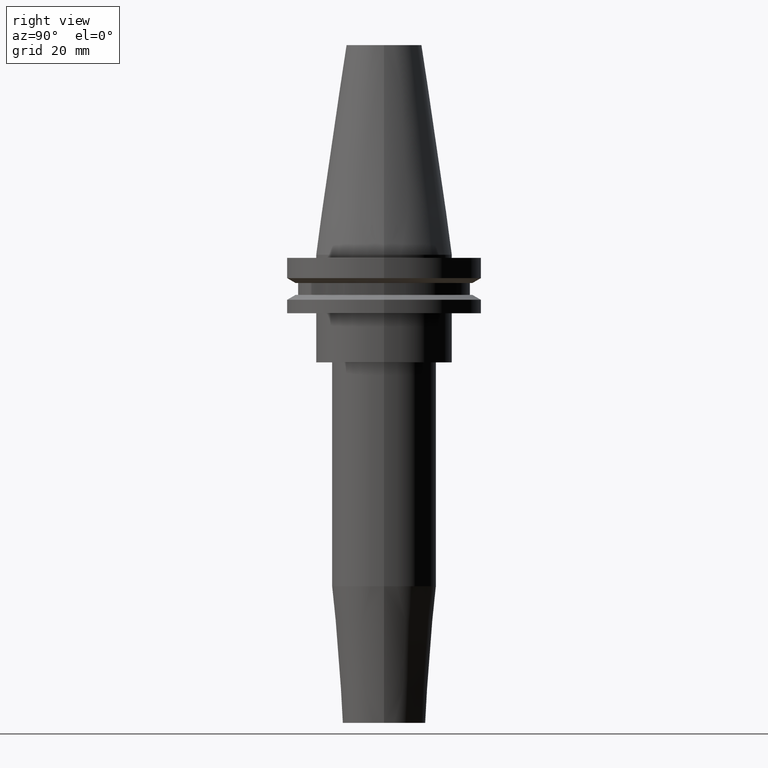
[diagram: clean part render]
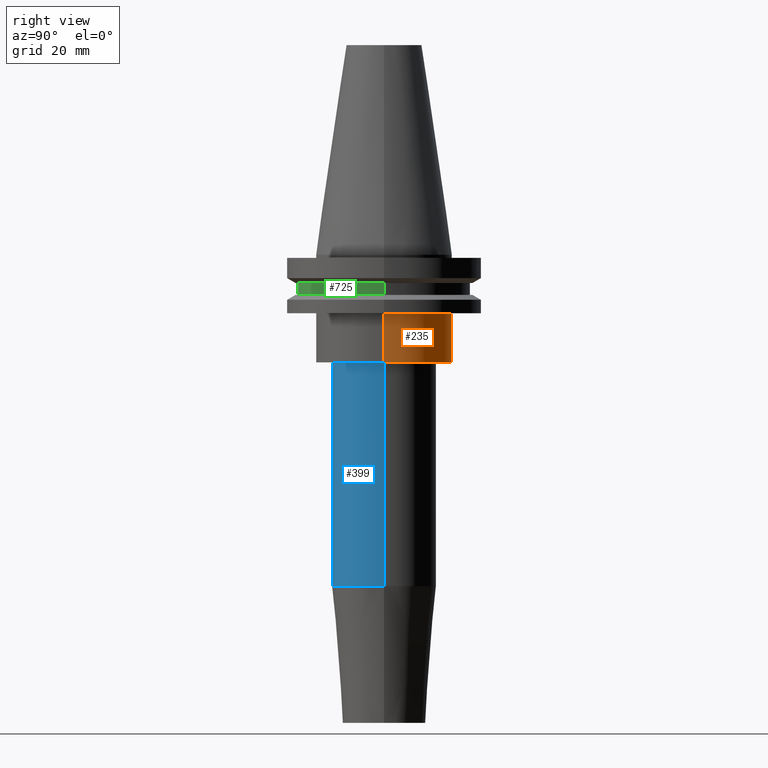
[diagram: same view with three faces highlighted in distinct colors, each labeled with its STEP entity id]
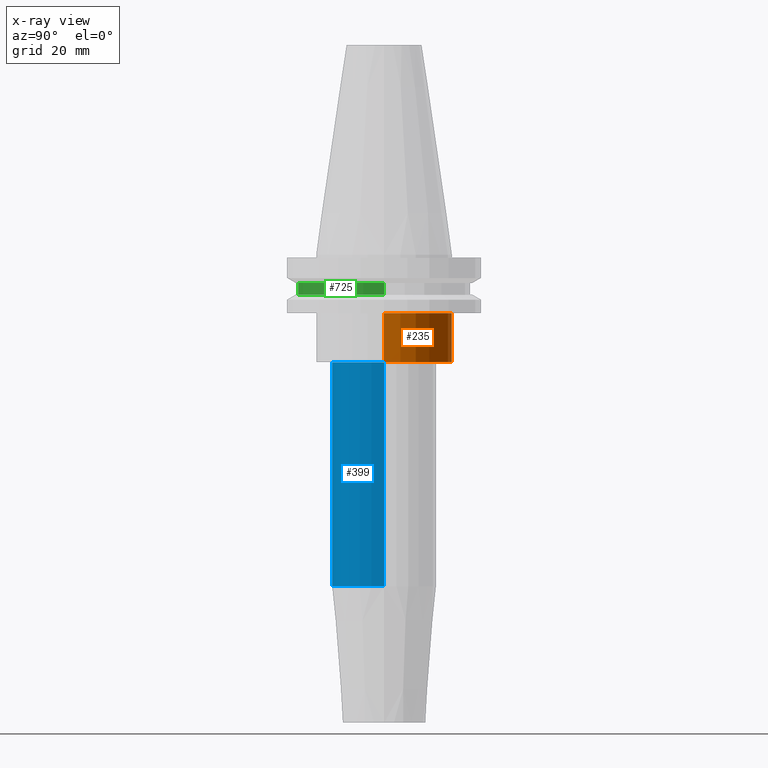
[diagram: x-ray of the same camera — body ghosted, the three highlighted faces saturated]
A machine part, right view with three faces highlighted in distinct colors.
The next image is the same camera in x-ray (body ghosted, the three faces saturated) — at least one of them is partly hidden behind the body in this view.
Their STEP definitions:

[orange] entity #235 — the highlighted cylindrical surface (partial cylindrical patch) has radius 22.225 mm, axis along (-0, -0, 1).
#9 = DIRECTION ( 'NONE',  ( -0.000000000000000000, -0.000000000000000000, 1.000000000000000000 ) ) ;
#60 = EDGE_CURVE ( 'NONE', #61, #790, #620, .T. ) ;
#61 = VERTEX_POINT ( 'NONE', #556 ) ;
#84 = CARTESIAN_POINT ( 'NONE',  ( -22.22499999999999787, 2.721777511104992454E-15, -35.04999999999999716 ) ) ;
#162 = CARTESIAN_POINT ( 'NONE',  ( 0.000000000000000000, 0.000000000000000000, 68.25000000000000000 ) ) ;
#212 = CARTESIAN_POINT ( 'NONE',  ( 0.000000000000000000, 0.000000000000000000, -19.04999999999999716 ) ) ;
#221 = DIRECTION ( 'NONE',  ( -0.000000000000000000, -0.000000000000000000, 1.000000000000000000 ) ) ;
#235 = ADVANCED_FACE ( 'NONE', ( #509 ), #821, .T. ) ;
#274 = DIRECTION ( 'NONE',  ( 1.000000000000000000, 0.000000000000000000, 0.000000000000000000 ) ) ;
#281 = CARTESIAN_POINT ( 'NONE',  ( -22.22500000000000142, 2.721777511104992849E-15, -19.04999999999999716 ) ) ;
#282 = DIRECTION ( 'NONE',  ( 1.000000000000000000, 0.000000000000000000, 0.000000000000000000 ) ) ;
#340 = DIRECTION ( 'NONE',  ( -0.000000000000000000, -0.000000000000000000, 1.000000000000000000 ) ) ;
#380 = LINE ( 'NONE', #455, #783 ) ;
#410 = CARTESIAN_POINT ( 'NONE',  ( 0.000000000000000000, 0.000000000000000000, -35.04999999999999716 ) ) ;
#437 = EDGE_CURVE ( 'NONE', #626, #775, #528, .T. ) ;
#455 = CARTESIAN_POINT ( 'NONE',  ( 22.22500000000000142, 0.000000000000000000, 68.25000000000000000 ) ) ;
#460 = DIRECTION ( 'NONE',  ( -0.000000000000000000, -0.000000000000000000, 1.000000000000000000 ) ) ;
#465 = LINE ( 'NONE', #601, #564 ) ;
#490 = AXIS2_PLACEMENT_3D ( 'NONE', #410, #340, #274 ) ;
#503 = ORIENTED_EDGE ( 'NONE', *, *, #437, .T. ) ;
#509 = FACE_OUTER_BOUND ( 'NONE', #540, .T. ) ;
#528 = CIRCLE ( 'NONE', #490, 22.22499999999999787 ) ;
#540 = EDGE_LOOP ( 'NONE', ( #503, #770, #758, #633 ) ) ;
#556 = CARTESIAN_POINT ( 'NONE',  ( 22.22500000000000142, 0.000000000000000000, -19.04999999999999716 ) ) ;
#564 = VECTOR ( 'NONE', #9, 1000.000000000000000 ) ;
#566 = DIRECTION ( 'NONE',  ( 1.000000000000000000, 0.000000000000000000, 0.000000000000000000 ) ) ;
#581 = CARTESIAN_POINT ( 'NONE',  ( 22.22499999999999787, 0.000000000000000000, -35.04999999999999716 ) ) ;
#601 = CARTESIAN_POINT ( 'NONE',  ( -22.22500000000000142, 2.721777511104992849E-15, 68.25000000000000000 ) ) ;
#620 = CIRCLE ( 'NONE', #810, 22.22500000000000142 ) ;
#626 = VERTEX_POINT ( 'NONE', #581 ) ;
#633 = ORIENTED_EDGE ( 'NONE', *, *, #684, .F. ) ;
#668 = DIRECTION ( 'NONE',  ( -0.000000000000000000, -0.000000000000000000, 1.000000000000000000 ) ) ;
#684 = EDGE_CURVE ( 'NONE', #626, #61, #380, .T. ) ;
#690 = AXIS2_PLACEMENT_3D ( 'NONE', #162, #221, #566 ) ;
#758 = ORIENTED_EDGE ( 'NONE', *, *, #60, .F. ) ;
#770 = ORIENTED_EDGE ( 'NONE', *, *, #825, .T. ) ;
#775 = VERTEX_POINT ( 'NONE', #84 ) ;
#783 = VECTOR ( 'NONE', #460, 1000.000000000000000 ) ;
#790 = VERTEX_POINT ( 'NONE', #281 ) ;
#810 = AXIS2_PLACEMENT_3D ( 'NONE', #212, #668, #282 ) ;
#821 = CYLINDRICAL_SURFACE ( 'NONE', #690, 22.22500000000000142 ) ;
#825 = EDGE_CURVE ( 'NONE', #775, #790, #465, .T. ) ;

[blue] entity #399 — the highlighted cylindrical surface (partial cylindrical patch) has radius 17 mm, axis along (-0, -0, 1).
#3 = CARTESIAN_POINT ( 'NONE',  ( 17.00000000000000000, 0.000000000000000000, -35.04999999999999716 ) ) ;
#38 = EDGE_CURVE ( 'NONE', #67, #299, #433, .T. ) ;
#43 = ORIENTED_EDGE ( 'NONE', *, *, #318, .F. ) ;
#56 = CYLINDRICAL_SURFACE ( 'NONE', #205, 17.00000000000000000 ) ;
#67 = VERTEX_POINT ( 'NONE', #402 ) ;
#205 = AXIS2_PLACEMENT_3D ( 'NONE', #813, #611, #470 ) ;
#232 = EDGE_LOOP ( 'NONE', ( #43, #441, #567, #855 ) ) ;
#270 = DIRECTION ( 'NONE',  ( -0.000000000000000000, -0.000000000000000000, 1.000000000000000000 ) ) ;
#299 = VERTEX_POINT ( 'NONE', #3 ) ;
#307 = CARTESIAN_POINT ( 'NONE',  ( -17.00000000000000000, 2.081899558550500280E-15, 0.000000000000000000 ) ) ;
#318 = EDGE_CURVE ( 'NONE', #330, #67, #788, .T. ) ;
#319 = AXIS2_PLACEMENT_3D ( 'NONE', #807, #412, #745 ) ;
#330 = VERTEX_POINT ( 'NONE', #767 ) ;
#346 = CARTESIAN_POINT ( 'NONE',  ( 17.00000000000000000, 0.000000000000000000, -107.9282834233838457 ) ) ;
#349 = LINE ( 'NONE', #614, #756 ) ;
#399 = ADVANCED_FACE ( 'NONE', ( #645 ), #56, .T. ) ;
#402 = CARTESIAN_POINT ( 'NONE',  ( -17.00000000000000000, 2.081899558550500280E-15, -35.04999999999999716 ) ) ;
#405 = DIRECTION ( 'NONE',  ( -0.000000000000000000, -0.000000000000000000, 1.000000000000000000 ) ) ;
#411 = CARTESIAN_POINT ( 'NONE',  ( 0.000000000000000000, 0.000000000000000000, -107.9282834233838457 ) ) ;
#412 = DIRECTION ( 'NONE',  ( -0.000000000000000000, -0.000000000000000000, 1.000000000000000000 ) ) ;
#415 = EDGE_CURVE ( 'NONE', #731, #299, #349, .T. ) ;
#433 = CIRCLE ( 'NONE', #319, 17.00000000000000000 ) ;
#441 = ORIENTED_EDGE ( 'NONE', *, *, #744, .T. ) ;
#470 = DIRECTION ( 'NONE',  ( 1.000000000000000000, 0.000000000000000000, 0.000000000000000000 ) ) ;
#511 = DIRECTION ( 'NONE',  ( -0.000000000000000000, -0.000000000000000000, 1.000000000000000000 ) ) ;
#539 = VECTOR ( 'NONE', #511, 1000.000000000000000 ) ;
#567 = ORIENTED_EDGE ( 'NONE', *, *, #415, .T. ) ;
#611 = DIRECTION ( 'NONE',  ( -0.000000000000000000, -0.000000000000000000, 1.000000000000000000 ) ) ;
#614 = CARTESIAN_POINT ( 'NONE',  ( 17.00000000000000000, 0.000000000000000000, 0.000000000000000000 ) ) ;
#645 = FACE_OUTER_BOUND ( 'NONE', #232, .T. ) ;
#669 = CIRCLE ( 'NONE', #798, 17.00000000000000000 ) ;
#731 = VERTEX_POINT ( 'NONE', #346 ) ;
#738 = DIRECTION ( 'NONE',  ( 1.000000000000000000, 0.000000000000000000, 0.000000000000000000 ) ) ;
#744 = EDGE_CURVE ( 'NONE', #330, #731, #669, .T. ) ;
#745 = DIRECTION ( 'NONE',  ( 1.000000000000000000, 0.000000000000000000, 0.000000000000000000 ) ) ;
#756 = VECTOR ( 'NONE', #405, 1000.000000000000000 ) ;
#767 = CARTESIAN_POINT ( 'NONE',  ( -17.00000000000000000, 2.081899558550500280E-15, -107.9282834233838457 ) ) ;
#788 = LINE ( 'NONE', #307, #539 ) ;
#798 = AXIS2_PLACEMENT_3D ( 'NONE', #411, #270, #738 ) ;
#807 = CARTESIAN_POINT ( 'NONE',  ( 0.000000000000000000, 0.000000000000000000, -35.04999999999999716 ) ) ;
#813 = CARTESIAN_POINT ( 'NONE',  ( 0.000000000000000000, 0.000000000000000000, 0.000000000000000000 ) ) ;
#855 = ORIENTED_EDGE ( 'NONE', *, *, #38, .F. ) ;

[green] entity #725 — the highlighted cylindrical surface (partial cylindrical patch) has radius 28.18 mm, axis along (-0, -0, 1).
#4 = DIRECTION ( 'NONE',  ( 1.000000000000000000, 0.000000000000000000, 0.000000000000000000 ) ) ;
#15 = ORIENTED_EDGE ( 'NONE', *, *, #812, .T. ) ;
#25 = EDGE_CURVE ( 'NONE', #273, #619, #287, .T. ) ;
#32 = AXIS2_PLACEMENT_3D ( 'NONE', #52, #640, #108 ) ;
#35 = VECTOR ( 'NONE', #444, 1000.000000000000000 ) ;
#52 = CARTESIAN_POINT ( 'NONE',  ( 0.000000000000000000, 0.000000000000000000, -9.204999999999991189 ) ) ;
#74 = DIRECTION ( 'NONE',  ( -0.000000000000000000, -0.000000000000000000, 1.000000000000000000 ) ) ;
#79 = DIRECTION ( 'NONE',  ( -0.000000000000000000, -0.000000000000000000, 1.000000000000000000 ) ) ;
#90 = AXIS2_PLACEMENT_3D ( 'NONE', #676, #74, #4 ) ;
#108 = DIRECTION ( 'NONE',  ( 1.000000000000000000, 0.000000000000000000, 0.000000000000000000 ) ) ;
#117 = FACE_OUTER_BOUND ( 'NONE', #718, .T. ) ;
#138 = VECTOR ( 'NONE', #271, 1000.000000000000000 ) ;
#145 = ORIENTED_EDGE ( 'NONE', *, *, #25, .T. ) ;
#153 = CARTESIAN_POINT ( 'NONE',  ( -28.17999999999999972, 3.451054679997241634E-15, -9.204999999999991189 ) ) ;
#176 = LINE ( 'NONE', #308, #35 ) ;
#177 = VERTEX_POINT ( 'NONE', #153 ) ;
#200 = AXIS2_PLACEMENT_3D ( 'NONE', #401, #79, #481 ) ;
#236 = CARTESIAN_POINT ( 'NONE',  ( 28.17999999999999972, 0.000000000000000000, -9.204999999999991189 ) ) ;
#256 = VERTEX_POINT ( 'NONE', #627 ) ;
#260 = CIRCLE ( 'NONE', #32, 28.17999999999999972 ) ;
#271 = DIRECTION ( 'NONE',  ( -0.000000000000000000, -0.000000000000000000, 1.000000000000000000 ) ) ;
#273 = VERTEX_POINT ( 'NONE', #618 ) ;
#287 = LINE ( 'NONE', #612, #138 ) ;
#308 = CARTESIAN_POINT ( 'NONE',  ( -28.17999999999999972, 3.451054679997241634E-15, 68.25000000000000000 ) ) ;
#387 = CYLINDRICAL_SURFACE ( 'NONE', #200, 28.17999999999999972 ) ;
#401 = CARTESIAN_POINT ( 'NONE',  ( 0.000000000000000000, 0.000000000000000000, 68.25000000000000000 ) ) ;
#413 = CIRCLE ( 'NONE', #90, 28.17999999999999972 ) ;
#444 = DIRECTION ( 'NONE',  ( -0.000000000000000000, -0.000000000000000000, 1.000000000000000000 ) ) ;
#456 = ORIENTED_EDGE ( 'NONE', *, *, #709, .F. ) ;
#481 = DIRECTION ( 'NONE',  ( 1.000000000000000000, 0.000000000000000000, 0.000000000000000000 ) ) ;
#612 = CARTESIAN_POINT ( 'NONE',  ( 28.17999999999999972, 0.000000000000000000, 68.25000000000000000 ) ) ;
#618 = CARTESIAN_POINT ( 'NONE',  ( 28.17999999999999972, 0.000000000000000000, -13.05499999999999794 ) ) ;
#619 = VERTEX_POINT ( 'NONE', #236 ) ;
#627 = CARTESIAN_POINT ( 'NONE',  ( -28.17999999999999972, 3.451054679997241634E-15, -13.05499999999999794 ) ) ;
#640 = DIRECTION ( 'NONE',  ( -0.000000000000000000, -0.000000000000000000, 1.000000000000000000 ) ) ;
#656 = EDGE_CURVE ( 'NONE', #177, #619, #260, .T. ) ;
#675 = ORIENTED_EDGE ( 'NONE', *, *, #656, .F. ) ;
#676 = CARTESIAN_POINT ( 'NONE',  ( 0.000000000000000000, 0.000000000000000000, -13.05499999999999794 ) ) ;
#709 = EDGE_CURVE ( 'NONE', #256, #177, #176, .T. ) ;
#718 = EDGE_LOOP ( 'NONE', ( #456, #15, #145, #675 ) ) ;
#725 = ADVANCED_FACE ( 'NONE', ( #117 ), #387, .T. ) ;
#812 = EDGE_CURVE ( 'NONE', #256, #273, #413, .T. ) ;